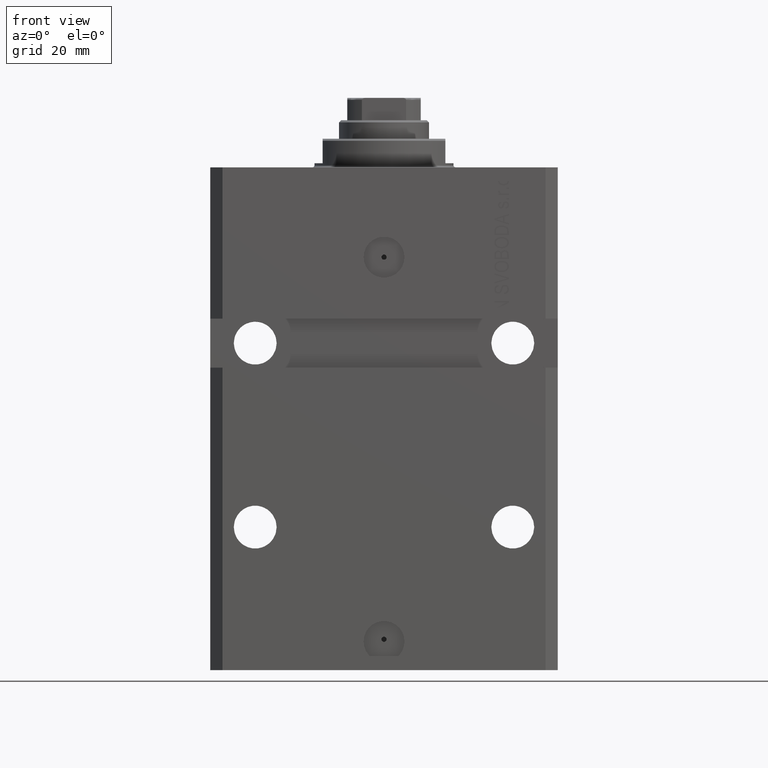
[diagram: clean part render]
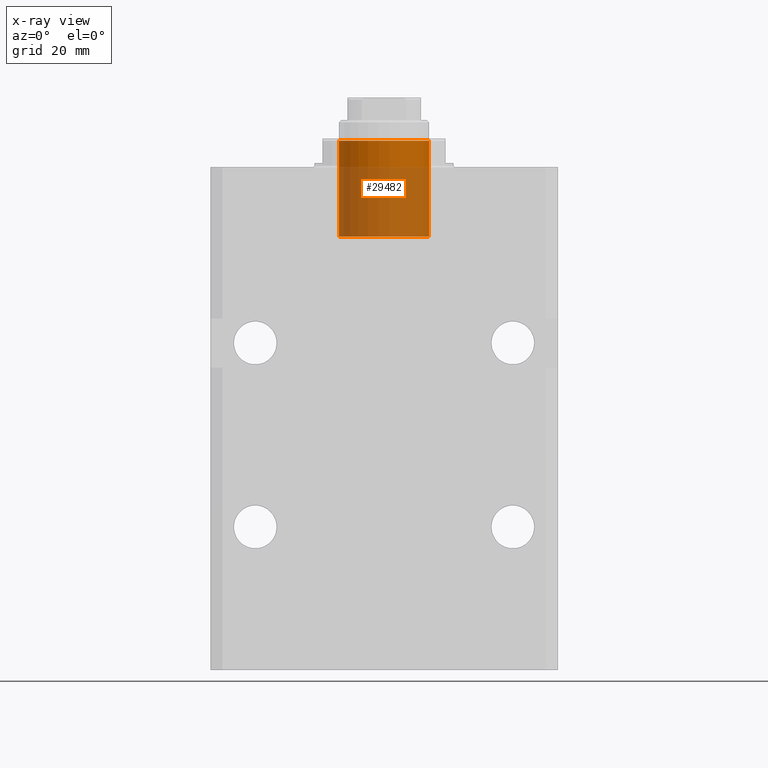
[diagram: x-ray — body ghosted, one internal face saturated and labeled with its STEP entity id]
A machine part, front view, then the same camera in x-ray: the body is ghosted and one INTERNAL B-rep face — a face not visible from any outside direction — is saturated and labeled: STEP entity #29482.
In plain terms, the highlighted cylindrical surface (partial cylindrical patch) has radius 11 mm, axis along (0, -0, 1).
Its self-contained STEP definition (entity closure, byte-faithful):
#2211 = CARTESIAN_POINT ( 'NONE',  ( 0.000000000000000000, 0.000000000000000000, -6.499999999999992006 ) ) ;
#2313 = EDGE_LOOP ( 'NONE', ( #41573, #17399, #33927, #35006 ) ) ;
#2407 = CIRCLE ( 'NONE', #31499, 11.00000000000000000 ) ;
#2637 = EDGE_CURVE ( 'NONE', #41830, #41522, #27304, .T. ) ;
#2738 = VERTEX_POINT ( 'NONE', #24575 ) ;
#4195 = DIRECTION ( 'NONE',  ( -0.000000000000000000, -0.000000000000000000, -1.000000000000000000 ) ) ;
#5115 = EDGE_CURVE ( 'NONE', #41522, #7193, #2407, .T. ) ;
#5504 = CARTESIAN_POINT ( 'NONE',  ( 11.00000000000000000, 1.347111479062088405E-15, -6.499999999999992006 ) ) ;
#7193 = VERTEX_POINT ( 'NONE', #43192 ) ;
#8973 = CARTESIAN_POINT ( 'NONE',  ( -11.00000000000000000, 0.000000000000000000, 17.00000000000000000 ) ) ;
#12825 = VECTOR ( 'NONE', #43154, 1000.000000000000000 ) ;
#13027 = CARTESIAN_POINT ( 'NONE',  ( 0.000000000000000000, 0.000000000000000000, 17.00000000000000000 ) ) ;
#13051 = DIRECTION ( 'NONE',  ( 0.000000000000000000, 0.000000000000000000, -1.000000000000000000 ) ) ;
#14576 = AXIS2_PLACEMENT_3D ( 'NONE', #13027, #16954, #32183 ) ;
#16719 = FACE_OUTER_BOUND ( 'NONE', #2313, .T. ) ;
#16954 = DIRECTION ( 'NONE',  ( -0.000000000000000000, -0.000000000000000000, -1.000000000000000000 ) ) ;
#17399 = ORIENTED_EDGE ( 'NONE', *, *, #2637, .T. ) ;
#20094 = EDGE_CURVE ( 'NONE', #2738, #7193, #35533, .T. ) ;
#22107 = EDGE_CURVE ( 'NONE', #41830, #2738, #36344, .T. ) ;
#24575 = CARTESIAN_POINT ( 'NONE',  ( -11.00000000000000000, 0.000000000000000000, 17.00000000000000000 ) ) ;
#25934 = DIRECTION ( 'NONE',  ( 0.000000000000000000, 0.000000000000000000, -1.000000000000000000 ) ) ;
#27304 = LINE ( 'NONE', #46484, #35336 ) ;
#28464 = AXIS2_PLACEMENT_3D ( 'NONE', #33816, #25934, #29630 ) ;
#29482 = ADVANCED_FACE ( 'NONE', ( #16719 ), #31724, .F. ) ;
#29630 = DIRECTION ( 'NONE',  ( -1.000000000000000000, 0.000000000000000000, 0.000000000000000000 ) ) ;
#31499 = AXIS2_PLACEMENT_3D ( 'NONE', #2211, #13051, #31977 ) ;
#31724 = CYLINDRICAL_SURFACE ( 'NONE', #14576, 11.00000000000000000 ) ;
#31977 = DIRECTION ( 'NONE',  ( -1.000000000000000000, 0.000000000000000000, 0.000000000000000000 ) ) ;
#32183 = DIRECTION ( 'NONE',  ( -1.000000000000000000, 0.000000000000000000, 0.000000000000000000 ) ) ;
#33816 = CARTESIAN_POINT ( 'NONE',  ( 0.000000000000000000, 0.000000000000000000, 17.00000000000000000 ) ) ;
#33927 = ORIENTED_EDGE ( 'NONE', *, *, #5115, .T. ) ;
#35006 = ORIENTED_EDGE ( 'NONE', *, *, #20094, .F. ) ;
#35336 = VECTOR ( 'NONE', #4195, 1000.000000000000000 ) ;
#35533 = LINE ( 'NONE', #8973, #12825 ) ;
#36344 = CIRCLE ( 'NONE', #28464, 11.00000000000000000 ) ;
#38191 = CARTESIAN_POINT ( 'NONE',  ( 11.00000000000000000, 1.347111479062088405E-15, 17.00000000000000000 ) ) ;
#41522 = VERTEX_POINT ( 'NONE', #5504 ) ;
#41573 = ORIENTED_EDGE ( 'NONE', *, *, #22107, .F. ) ;
#41830 = VERTEX_POINT ( 'NONE', #38191 ) ;
#43154 = DIRECTION ( 'NONE',  ( -0.000000000000000000, -0.000000000000000000, -1.000000000000000000 ) ) ;
#43192 = CARTESIAN_POINT ( 'NONE',  ( -11.00000000000000000, 0.000000000000000000, -6.499999999999992006 ) ) ;
#46484 = CARTESIAN_POINT ( 'NONE',  ( 11.00000000000000000, 1.347111479062088405E-15, 17.00000000000000000 ) ) ;